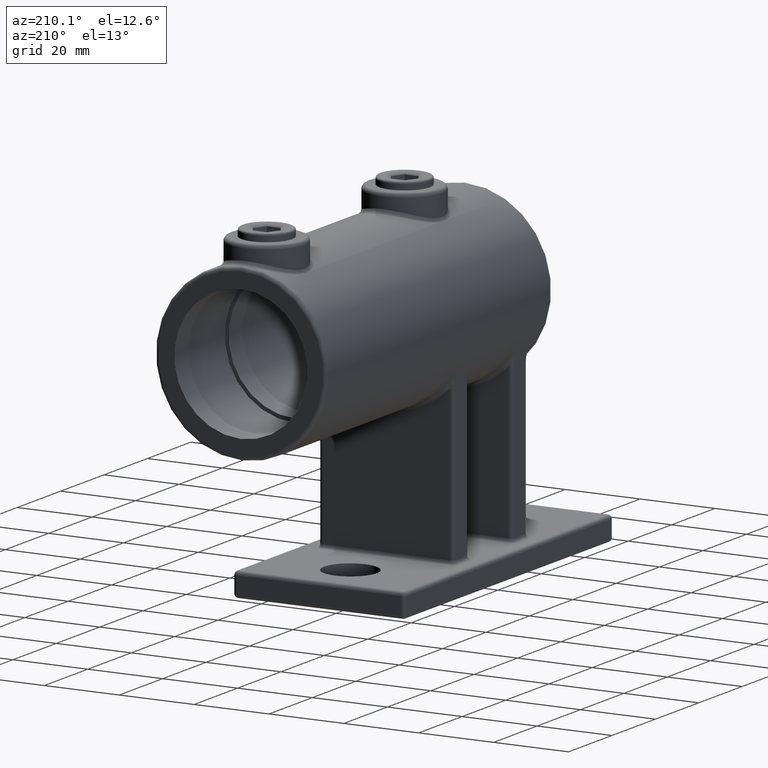
[diagram: clean part render]
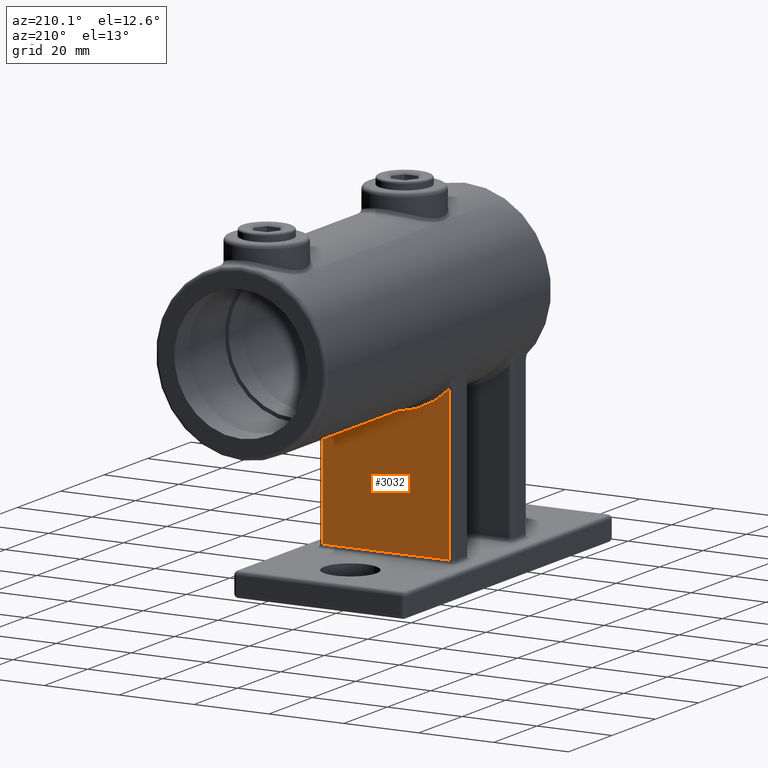
[diagram: same view with one face highlighted and labeled with its STEP entity id]
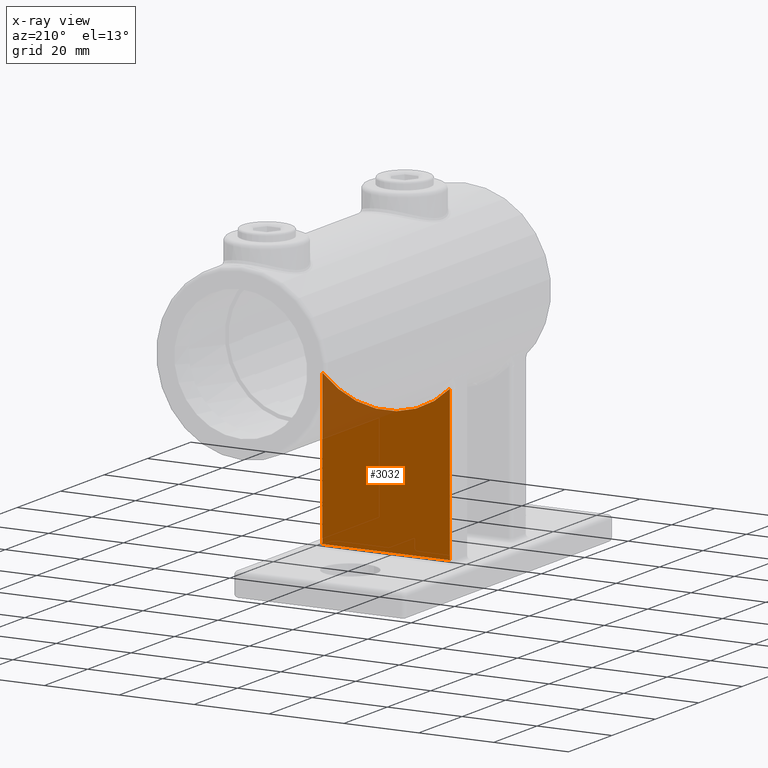
[diagram: x-ray of the same camera — body ghosted, the highlighted face saturated]
A machine part, auxiliary view. The second image highlights one B-rep face of the part: STEP entity #3032.
The next image is the same camera in x-ray: the body ghosted, the highlighted face saturated — about 10% of this face is hidden behind the body in this view.
In plain terms, the highlighted planar face has unit normal (0, -1, 0).
Its self-contained STEP definition (entity closure, byte-faithful):
#690 = DIRECTION ( 'NONE',  ( 0.000000000000000000, 0.000000000000000000, -1.000000000000000000 ) ) ;
#831 = PLANE ( 'NONE',  #2440 ) ;
#2140 = EDGE_CURVE ( 'NONE', #8407, #8439, #4589, .T. ) ;
#2440 = AXIS2_PLACEMENT_3D ( 'NONE', #15614, #7021, #6935 ) ;
#2555 = CARTESIAN_POINT ( 'NONE',  ( 16.99999999999999289, 17.00000000000000000, 48.05892565390258397 ) ) ;
#3032 = ADVANCED_FACE ( 'NONE', ( #6355 ), #831, .F. ) ;
#3774 = EDGE_CURVE ( 'NONE', #10804, #14116, #8629, .T. ) ;
#3971 = ORIENTED_EDGE ( 'NONE', *, *, #10273, .T. ) ;
#4225 = DIRECTION ( 'NONE',  ( -1.000000000000000000, -9.637352644315594010E-17, 0.000000000000000000 ) ) ;
#4500 = CARTESIAN_POINT ( 'NONE',  ( 16.99999999999999645, 17.00000000000000000, 7.499999999993178790 ) ) ;
#4589 = CIRCLE ( 'NONE', #14823, 24.00000000000000000 ) ;
#4900 = CARTESIAN_POINT ( 'NONE',  ( -17.00000000000000000, 17.00000000000000000, 48.05892565390258397 ) ) ;
#4979 = CARTESIAN_POINT ( 'NONE',  ( -16.99999999999999645, 16.99999999999999645, 500000.0000000000582 ) ) ;
#5165 = DIRECTION ( 'NONE',  ( 1.000000000000000000, 1.445602896647339163E-16, 0.000000000000000000 ) ) ;
#6355 = FACE_OUTER_BOUND ( 'NONE', #9206, .T. ) ;
#6935 = DIRECTION ( 'NONE',  ( 1.000000000000000000, 9.637352644315594010E-17, 0.000000000000000000 ) ) ;
#6941 = VECTOR ( 'NONE', #13713, 1000.000000000000000 ) ;
#7021 = DIRECTION ( 'NONE',  ( 9.637352644315594010E-17, -1.000000000000000000, 0.000000000000000000 ) ) ;
#7565 = CARTESIAN_POINT ( 'NONE',  ( -16.99999999999999645, 16.99999999999999645, 7.499999999993178790 ) ) ;
#7771 = ORIENTED_EDGE ( 'NONE', *, *, #2140, .T. ) ;
#8407 = VERTEX_POINT ( 'NONE', #4900 ) ;
#8439 = VERTEX_POINT ( 'NONE', #2555 ) ;
#8629 = LINE ( 'NONE', #15168, #14028 ) ;
#8654 = ORIENTED_EDGE ( 'NONE', *, *, #3774, .T. ) ;
#8899 = LINE ( 'NONE', #4979, #6941 ) ;
#9206 = EDGE_LOOP ( 'NONE', ( #7771, #3971, #8654, #11333 ) ) ;
#9936 = DIRECTION ( 'NONE',  ( 9.637352644315594010E-17, -1.000000000000000000, 0.000000000000000000 ) ) ;
#10273 = EDGE_CURVE ( 'NONE', #8439, #10804, #13330, .T. ) ;
#10426 = VECTOR ( 'NONE', #690, 1000.000000000000000 ) ;
#10804 = VERTEX_POINT ( 'NONE', #4500 ) ;
#11333 = ORIENTED_EDGE ( 'NONE', *, *, #11509, .T. ) ;
#11509 = EDGE_CURVE ( 'NONE', #14116, #8407, #8899, .T. ) ;
#12941 = CARTESIAN_POINT ( 'NONE',  ( 16.99999999999999645, 17.00000000000000000, 500000.0000000000582 ) ) ;
#13330 = LINE ( 'NONE', #12941, #10426 ) ;
#13713 = DIRECTION ( 'NONE',  ( -0.000000000000000000, -0.000000000000000000, 1.000000000000000000 ) ) ;
#14028 = VECTOR ( 'NONE', #4225, 1000.000000000000000 ) ;
#14116 = VERTEX_POINT ( 'NONE', #7565 ) ;
#14823 = AXIS2_PLACEMENT_3D ( 'NONE', #14856, #9936, #5165 ) ;
#14856 = CARTESIAN_POINT ( 'NONE',  ( 9.637352644315619895E-17, 17.00000000000000000, 65.00000000000000000 ) ) ;
#15168 = CARTESIAN_POINT ( 'NONE',  ( -18.00000000000000000, 16.99999999999999645, 7.499999999993178790 ) ) ;
#15614 = CARTESIAN_POINT ( 'NONE',  ( -18.00000000000000000, 16.99999999999999645, 500000.0000000000582 ) ) ;